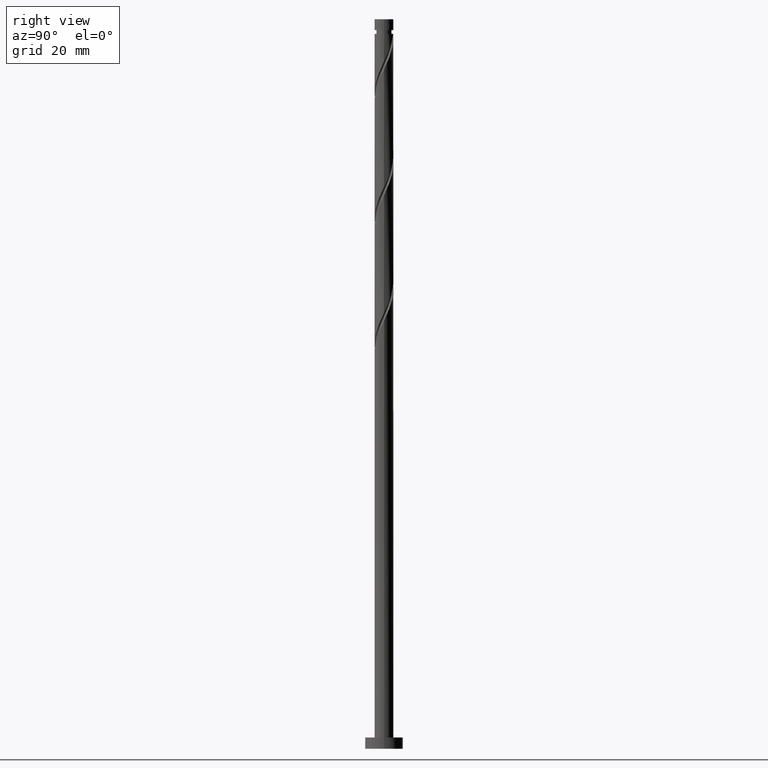
[diagram: clean part render]
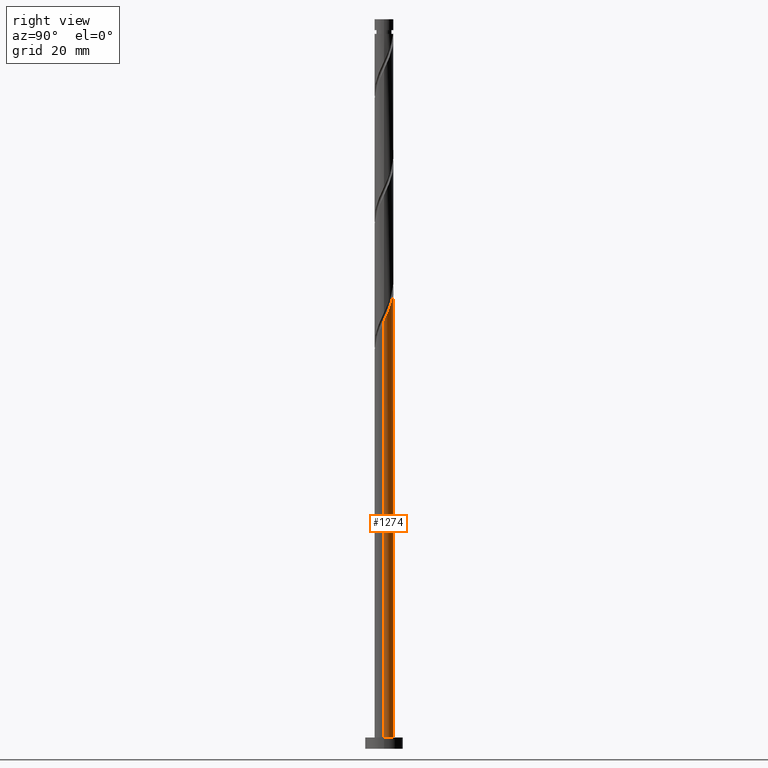
[diagram: same view with one face highlighted and labeled with its STEP entity id]
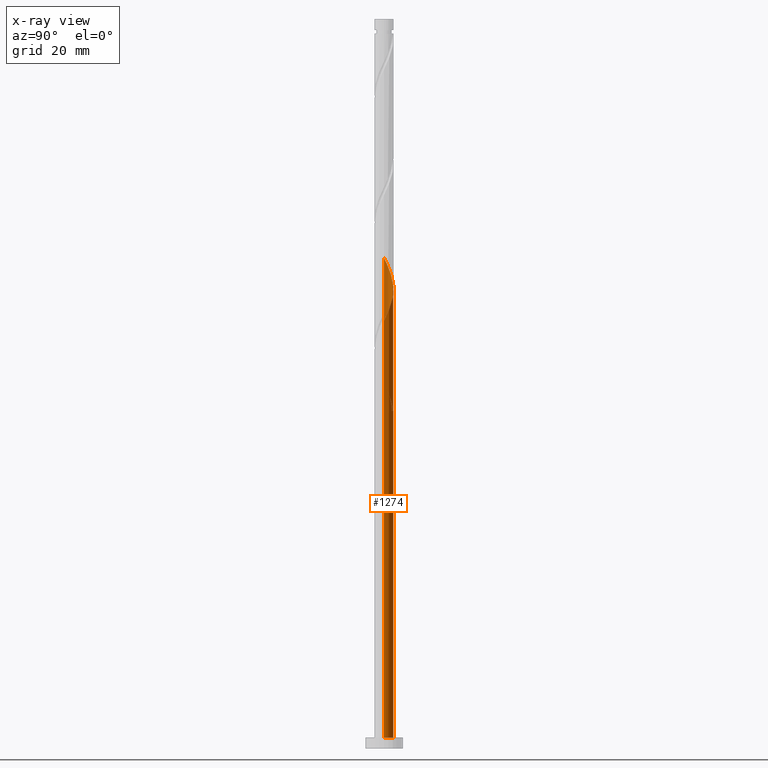
[diagram: x-ray of the same camera — body ghosted, the highlighted face saturated]
A machine part, right view. The second image highlights one B-rep face of the part: STEP entity #1274.
The next image is the same camera in x-ray: the body ghosted, the highlighted face saturated — about 0% of this face is hidden behind the body in this view.
In plain terms, the highlighted cylindrical surface (edge-blend (fillet) strip) has radius 2.5 mm, axis along (-0, -0, -1).
Its self-contained STEP definition (entity closure, byte-faithful):
#2 = DIRECTION ( 'NONE',  ( -0.000000000000000000, -0.000000000000000000, -1.000000000000000000 ) ) ;
#8 = DIRECTION ( 'NONE',  ( 0.000000000000000000, 0.000000000000000000, 1.000000000000000000 ) ) ;
#15 =( BOUNDED_CURVE ( )  B_SPLINE_CURVE ( 2, ( #1665, #588, #981, #1522, #41, #1389, #1128, #448, #573, #51, #1246, #1515, #1113, #440, #1648, #431, #1251, #848, #170, #715, #580, #1121, #989, #58, #746, #725, #458 ),
 .UNSPECIFIED., .F., .T. ) 
 B_SPLINE_CURVE_WITH_KNOTS ( ( 3, 2, 2, 2, 2, 2, 2, 2, 2, 2, 2, 2, 2, 3 ),
 ( 0.1795317669814462946, 0.1875000000000000000, 0.1979166666666666297, 0.2083333333333333703, 0.2187500000000000000, 0.2291666666666666297, 0.2395833333333333703, 0.2500000000000000000, 0.2604166666666666297, 0.2708333333333333703, 0.2812500000000000000, 0.2916666666666666297, 0.3020833333333333703, 0.3045317669814465722 ),
 .UNSPECIFIED. ) 
 CURVE ( )  GEOMETRIC_REPRESENTATION_ITEM ( )  RATIONAL_B_SPLINE_CURVE ( ( 0.9062941362546541590, 0.9031415850403583523, 0.9090909090909338186, 0.9013135103398520753, 0.9090909090909338186, 0.9013135103398520753, 0.9090909090909338186, 0.9013135103398520753, 0.9090909090909338186, 0.9013135103398520753, 0.9090909090909338186, 0.9013135103398520753, 0.9090909090909338186, 0.9013135103398520753, 0.9090909090909338186, 0.9013135103398520753, 0.9090909090909338186, 0.9013135103398520753, 0.9090909090909338186, 0.9013135103398520753, 0.9090909090909338186, 0.9013135103398520753, 0.9090909090909338186, 0.9013135103398520753, 0.9090909090909338186, 0.9072628343904273196, 0.9062941362546538260 ) ) 
 REPRESENTATION_ITEM ( '' )  );
#23 = CARTESIAN_POINT ( 'NONE',  ( -0.4820743581320866555, 2.475061956595791646, 91.67844435493078947 ) ) ;
#36 = CARTESIAN_POINT ( 'NONE',  ( -1.873015379995218943, 1.655842198490353301, 95.15066657715298959 ) ) ;
#41 = CARTESIAN_POINT ( 'NONE',  ( 2.237757425227750119, 1.114648691668403968, 115.9839999104863182 ) ) ;
#48 = AXIS2_PLACEMENT_3D ( 'NONE', #545, #8, #957 ) ;
#51 = CARTESIAN_POINT ( 'NONE',  ( 1.106241244887210096, 2.265956240501273200, 119.4562221327085751 ) ) ;
#58 = CARTESIAN_POINT ( 'NONE',  ( -2.475061956595794754, 0.4820743581320875992, 129.1784443549307753 ) ) ;
#88 = ORIENTED_EDGE ( 'NONE', *, *, #120, .T. ) ;
#101 = CYLINDRICAL_SURFACE ( 'NONE', #238, 2.500000000000000000 ) ;
#120 = EDGE_CURVE ( 'NONE', #230, #1533, #1026, .T. ) ;
#133 = DIRECTION ( 'NONE',  ( -0.000000000000000000, -0.000000000000000000, -1.000000000000000000 ) ) ;
#135 = CARTESIAN_POINT ( 'NONE',  ( -2.475061956595794754, 0.4820743581320875992, 95.84511102159744667 ) ) ;
#158 = CARTESIAN_POINT ( 'NONE',  ( 2.500000000000003553, 6.355358388538470584E-16, 113.5315443663873936 ) ) ;
#168 = CARTESIAN_POINT ( 'NONE',  ( -2.084192795893801797, 1.380630431920285117, 93.76177768826411807 ) ) ;
#170 = CARTESIAN_POINT ( 'NONE',  ( -1.655842198490355077, 1.873015379995222052, 125.7062221327085325 ) ) ;
#172 = CARTESIAN_POINT ( 'NONE',  ( -1.106241244887206987, 2.265956240501270980, 93.06733324381967520 ) ) ;
#206 = VECTOR ( 'NONE', #133, 1000.000000000000000 ) ;
#230 = VERTEX_POINT ( 'NONE', #158 ) ;
#238 = AXIS2_PLACEMENT_3D ( 'NONE', #1348, #420, #1609 ) ;
#243 = ORIENTED_EDGE ( 'NONE', *, *, #1717, .F. ) ;
#274 = CARTESIAN_POINT ( 'NONE',  ( 0.4974937185533118145, 2.449999999999999734, 89.59511102159744667 ) ) ;
#294 = CARTESIAN_POINT ( 'NONE',  ( -2.500000000000000000, 0.000000000000000000, 193.4900000000000091 ) ) ;
#298 = CIRCLE ( 'NONE', #773, 2.500000000000000000 ) ;
#325 = VERTEX_POINT ( 'NONE', #1656 ) ;
#332 = EDGE_CURVE ( 'NONE', #230, #1346, #15, .T. ) ;
#347 = EDGE_CURVE ( 'NONE', #412, #1003, #298, .T. ) ;
#361 = CARTESIAN_POINT ( 'NONE',  ( -2.495279123588690418, 0.1535646293339485713, 96.53955546604188953 ) ) ;
#412 = VERTEX_POINT ( 'NONE', #881 ) ;
#419 = CARTESIAN_POINT ( 'NONE',  ( 0.1749450994641913448, 2.515496290581585193, 90.28955546604188953 ) ) ;
#420 = DIRECTION ( 'NONE',  ( -0.000000000000000000, -0.000000000000000000, -1.000000000000000000 ) ) ;
#431 = CARTESIAN_POINT ( 'NONE',  ( -0.8200423376424318400, 2.384503709418418715, 123.6228887993752323 ) ) ;
#435 = CARTESIAN_POINT ( 'NONE',  ( -0.8200423376424318400, 2.384503709418418715, 90.28955546604188953 ) ) ;
#440 = CARTESIAN_POINT ( 'NONE',  ( -0.1749450994641887080, 2.515496290581588301, 122.2339999104863466 ) ) ;
#443 =( BOUNDED_CURVE ( )  B_SPLINE_CURVE ( 2, ( #1510, #1484, #984, #1221, #948, #1373, #36, #850, #1636, #172, #830, #23, #1518, #419, #274 ),
 .UNSPECIFIED., .F., .T. ) 
 B_SPLINE_CURVE_WITH_KNOTS ( ( 3, 2, 2, 2, 2, 2, 2, 3 ),
 ( 0.9295317669814464612, 0.9375000000000000000, 0.9479166666666666297, 0.9583333333333333703, 0.9687500000000000000, 0.9791666666666666297, 0.9895833333333333703, 1.000000000000000000 ),
 .UNSPECIFIED. ) 
 CURVE ( )  GEOMETRIC_REPRESENTATION_ITEM ( )  RATIONAL_B_SPLINE_CURVE ( ( 0.9062941362546483859, 0.9031415850403529122, 0.9090909090909282675, 0.9013135103398466352, 0.9090909090909282675, 0.9013135103398466352, 0.9090909090909282675, 0.9013135103398466352, 0.9090909090909282675, 0.9013135103398466352, 0.9090909090909282675, 0.9013135103398466352, 0.9090909090909282675, 0.9013135103398466352, 0.9090909090909282675 ) ) 
 REPRESENTATION_ITEM ( '' )  );
#444 = CARTESIAN_POINT ( 'NONE',  ( -1.114648691668405300, 2.237757425227750119, 90.98399991048631819 ) ) ;
#448 = CARTESIAN_POINT ( 'NONE',  ( 1.655019618953363914, 1.902429351286329950, 118.0673332438196752 ) ) ;
#458 = CARTESIAN_POINT ( 'NONE',  ( -2.500000000000003553, -2.250544558764799277E-15, 130.1982110330540650 ) ) ;
#488 = CIRCLE ( 'NONE', #48, 2.500000000000000000 ) ;
#520 = CARTESIAN_POINT ( 'NONE',  ( -2.265956240501273200, 1.106241244887208985, 94.45622213270854672 ) ) ;
#540 = LINE ( 'NONE', #294, #206 ) ;
#545 = CARTESIAN_POINT ( 'NONE',  ( 0.000000000000000000, 0.000000000000000000, 3.000000000000000000 ) ) ;
#573 = CARTESIAN_POINT ( 'NONE',  ( 1.380630431920286005, 2.084192795893801797, 118.7617776882641181 ) ) ;
#580 = CARTESIAN_POINT ( 'NONE',  ( -2.084192795893801797, 1.380630431920285117, 127.0951110215974609 ) ) ;
#588 = CARTESIAN_POINT ( 'NONE',  ( 2.500000000000003109, 0.2512594538148014145, 114.0649707355766083 ) ) ;
#663 = CARTESIAN_POINT ( 'NONE',  ( -2.500000000000000000, 0.000000000000000000, 3.000000000000000000 ) ) ;
#668 = CARTESIAN_POINT ( 'NONE',  ( 2.500000000000000000, 3.061616997868383141E-16, 3.000000000000000000 ) ) ;
#700 = VERTEX_POINT ( 'NONE', #663 ) ;
#707 = CARTESIAN_POINT ( 'NONE',  ( 0.4974937185533118145, 2.449999999999999734, 89.59511102159744667 ) ) ;
#715 = CARTESIAN_POINT ( 'NONE',  ( -1.902429351286331061, 1.655019618953362359, 126.4006665771530180 ) ) ;
#721 = EDGE_CURVE ( 'NONE', #1533, #700, #488, .T. ) ;
#725 = CARTESIAN_POINT ( 'NONE',  ( -2.500000000000003553, 0.07685487914417540867, 130.0350473450258733 ) ) ;
#746 = CARTESIAN_POINT ( 'NONE',  ( -2.495279123588690418, 0.1535646293339485713, 129.8728887993752323 ) ) ;
#750 = ORIENTED_EDGE ( 'NONE', *, *, #721, .T. ) ;
#773 = AXIS2_PLACEMENT_3D ( 'NONE', #857, #1392, #1273 ) ;
#800 = CARTESIAN_POINT ( 'NONE',  ( -2.500000000000003553, -2.250544558764799277E-15, 96.86487769972072215 ) ) ;
#810 = CARTESIAN_POINT ( 'NONE',  ( -2.500000000000003553, -2.250544558764799277E-15, 130.1982110330540650 ) ) ;
#830 = CARTESIAN_POINT ( 'NONE',  ( -0.7941578015096464327, 2.370509098548530424, 92.37288879937523234 ) ) ;
#848 = CARTESIAN_POINT ( 'NONE',  ( -1.409255045694378872, 2.091011141037081078, 125.0117776882641323 ) ) ;
#850 = CARTESIAN_POINT ( 'NONE',  ( -1.655019618953360139, 1.902429351286329506, 94.45622213270857515 ) ) ;
#857 = CARTESIAN_POINT ( 'NONE',  ( 0.000000000000000000, 0.000000000000000000, 89.59511102159744667 ) ) ;
#859 = EDGE_CURVE ( 'NONE', #325, #1003, #443, .T. ) ;
#872 = ORIENTED_EDGE ( 'NONE', *, *, #347, .T. ) ;
#881 = CARTESIAN_POINT ( 'NONE',  ( -0.4974937185533108153, 2.450000000000002842, 89.59511102159744667 ) ) ;
#923 = CARTESIAN_POINT ( 'NONE',  ( -2.500000000000003553, 0.07685487914418347166, 96.70171401169257308 ) ) ;
#948 = CARTESIAN_POINT ( 'NONE',  ( -2.237757425227747010, 1.114648691668404634, 96.53955546604188953 ) ) ;
#951 = LINE ( 'NONE', #1236, #1738 ) ;
#957 = DIRECTION ( 'NONE',  ( 1.000000000000000000, 0.000000000000000000, 0.000000000000000000 ) ) ;
#981 = CARTESIAN_POINT ( 'NONE',  ( 2.450000000000002842, 0.4974937185533110373, 114.5951110215974609 ) ) ;
#984 = CARTESIAN_POINT ( 'NONE',  ( -2.449999999999999734, 0.4974937185533113149, 97.92844435493077526 ) ) ;
#989 = CARTESIAN_POINT ( 'NONE',  ( -2.370509098548532645, 0.7941578015096485421, 128.4839999104863466 ) ) ;
#993 = CARTESIAN_POINT ( 'NONE',  ( -1.409255045694378872, 2.091011141037081078, 91.67844435493078947 ) ) ;
#1003 = VERTEX_POINT ( 'NONE', #707 ) ;
#1026 = LINE ( 'NONE', #1558, #1486 ) ;
#1034 = FACE_OUTER_BOUND ( 'NONE', #1555, .T. ) ;
#1112 = VERTEX_POINT ( 'NONE', #1543 ) ;
#1113 = CARTESIAN_POINT ( 'NONE',  ( 0.1535646293339501534, 2.495279123588690418, 121.5395554660418895 ) ) ;
#1121 = CARTESIAN_POINT ( 'NONE',  ( -2.265956240501273200, 1.106241244887208985, 127.7895554660418753 ) ) ;
#1128 = CARTESIAN_POINT ( 'NONE',  ( 1.873015379995222940, 1.655842198490353523, 117.3728887993752181 ) ) ;
#1221 = CARTESIAN_POINT ( 'NONE',  ( -2.384503709418415163, 0.8200423376424315069, 97.23399991048637503 ) ) ;
#1224 = ORIENTED_EDGE ( 'NONE', *, *, #859, .F. ) ;
#1236 = CARTESIAN_POINT ( 'NONE',  ( -2.500000000000000000, 0.000000000000000000, 193.4900000000000091 ) ) ;
#1246 = CARTESIAN_POINT ( 'NONE',  ( 0.7941578015096493193, 2.370509098548532645, 120.1506665771530038 ) ) ;
#1251 = CARTESIAN_POINT ( 'NONE',  ( -1.114648691668405300, 2.237757425227750119, 124.3173332438196610 ) ) ;
#1273 = DIRECTION ( 'NONE',  ( -1.000000000000000000, 0.000000000000000000, 0.000000000000000000 ) ) ;
#1274 = ADVANCED_FACE ( 'NONE', ( #1034 ), #101, .T. ) ;
#1346 = VERTEX_POINT ( 'NONE', #810 ) ;
#1348 = CARTESIAN_POINT ( 'NONE',  ( 0.000000000000000000, 0.000000000000000000, 193.4900000000000091 ) ) ;
#1373 = CARTESIAN_POINT ( 'NONE',  ( -2.091011141037077969, 1.409255045694377539, 95.84511102159747509 ) ) ;
#1379 = CARTESIAN_POINT ( 'NONE',  ( -1.655842198490355077, 1.873015379995222052, 92.37288879937524655 ) ) ;
#1389 = CARTESIAN_POINT ( 'NONE',  ( 2.091011141037082410, 1.409255045694377317, 116.6784443549308037 ) ) ;
#1392 = DIRECTION ( 'NONE',  ( 0.000000000000000000, -0.000000000000000000, -1.000000000000000000 ) ) ;
#1414 = DIRECTION ( 'NONE',  ( -0.000000000000000000, -0.000000000000000000, -1.000000000000000000 ) ) ;
#1431 = EDGE_CURVE ( 'NONE', #1112, #700, #540, .T. ) ;
#1459 = EDGE_CURVE ( 'NONE', #1346, #325, #951, .T. ) ;
#1484 = CARTESIAN_POINT ( 'NONE',  ( -2.499999999999999556, 0.2512594538148090195, 98.45858464095155682 ) ) ;
#1486 = VECTOR ( 'NONE', #1414, 1000.000000000000000 ) ;
#1498 = ORIENTED_EDGE ( 'NONE', *, *, #1459, .F. ) ;
#1510 = CARTESIAN_POINT ( 'NONE',  ( -2.500000000000000444, 3.342170823149074243E-15, 98.99201101014085680 ) ) ;
#1515 = CARTESIAN_POINT ( 'NONE',  ( 0.4820743581320889870, 2.475061956595793866, 120.8451110215974467 ) ) ;
#1518 = CARTESIAN_POINT ( 'NONE',  ( -0.1535646293339474611, 2.495279123588687753, 90.98399991048634661 ) ) ;
#1522 = CARTESIAN_POINT ( 'NONE',  ( 2.384503709418420048, 0.8200423376424310629, 115.2895554660419037 ) ) ;
#1527 = CARTESIAN_POINT ( 'NONE',  ( -1.902429351286331061, 1.655019618953362359, 93.06733324381967520 ) ) ;
#1533 = VERTEX_POINT ( 'NONE', #668 ) ;
#1542 = ORIENTED_EDGE ( 'NONE', *, *, #1431, .F. ) ;
#1543 = CARTESIAN_POINT ( 'NONE',  ( -2.500000000000003553, -2.250544558764799277E-15, 96.86487769972072215 ) ) ;
#1555 = EDGE_LOOP ( 'NONE', ( #1663, #88, #750, #1542, #243, #872, #1224, #1498 ) ) ;
#1558 = CARTESIAN_POINT ( 'NONE',  ( 2.500000000000000000, 3.061616997868383141E-16, 193.4900000000000091 ) ) ;
#1588 = CARTESIAN_POINT ( 'NONE',  ( -2.370509098548532645, 0.7941578015096485421, 95.15066657715301801 ) ) ;
#1609 = DIRECTION ( 'NONE',  ( -1.000000000000000000, 0.000000000000000000, 0.000000000000000000 ) ) ;
#1636 = CARTESIAN_POINT ( 'NONE',  ( -1.380630431920283341, 2.084192795893799133, 93.76177768826411807 ) ) ;
#1648 = CARTESIAN_POINT ( 'NONE',  ( -0.4974937185533108153, 2.450000000000002842, 122.9284443549307611 ) ) ;
#1651 = CARTESIAN_POINT ( 'NONE',  ( -0.4974937185533108153, 2.450000000000002842, 89.59511102159744667 ) ) ;
#1656 = CARTESIAN_POINT ( 'NONE',  ( -2.500000000000000444, 3.342170823149074243E-15, 98.99201101014085680 ) ) ;
#1657 =( BOUNDED_CURVE ( )  B_SPLINE_CURVE ( 2, ( #1651, #435, #444, #993, #1379, #1527, #168, #520, #1588, #135, #361, #923, #800 ),
 .UNSPECIFIED., .F., .T. ) 
 B_SPLINE_CURVE_WITH_KNOTS ( ( 3, 2, 2, 2, 2, 2, 3 ),
 ( 0.000000000000000000, 0.01041666666666662966, 0.02083333333333337034, 0.03125000000000000000, 0.04166666666666662966, 0.05208333333333336340, 0.05453176698144631546 ),
 .UNSPECIFIED. ) 
 CURVE ( )  GEOMETRIC_REPRESENTATION_ITEM ( )  RATIONAL_B_SPLINE_CURVE ( ( 0.9090909090909338186, 0.9013135103398520753, 0.9090909090909338186, 0.9013135103398520753, 0.9090909090909338186, 0.9013135103398520753, 0.9090909090909338186, 0.9013135103398520753, 0.9090909090909338186, 0.9013135103398520753, 0.9090909090909338186, 0.9072628343904275416, 0.9062941362546540480 ) ) 
 REPRESENTATION_ITEM ( '' )  );
#1663 = ORIENTED_EDGE ( 'NONE', *, *, #332, .F. ) ;
#1665 = CARTESIAN_POINT ( 'NONE',  ( 2.500000000000003553, 6.355358388538470584E-16, 113.5315443663873793 ) ) ;
#1717 = EDGE_CURVE ( 'NONE', #412, #1112, #1657, .T. ) ;
#1738 = VECTOR ( 'NONE', #2, 1000.000000000000000 ) ;